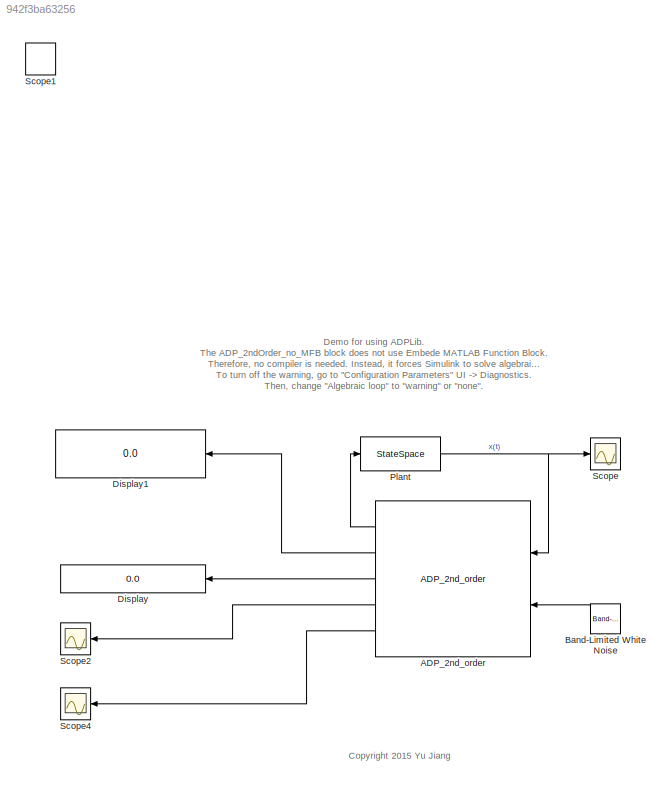
MODEL slx_942f3ba63256
KIND model
BLOCK [Reference] ADP_2nd_order  REF=ADPLib/ADP_2nd_order
  K = [0,0]
  Ports = [2, 5]
  Q = eye(2)
  R = 1
  SourceBlock = ADPLib/ADP_2nd_order
  dT = 0.1
  epsilon = .00001
BLOCK [Reference] Band-Limited White Noise  REF=simulink/Sources/Band-Limited
White Noise
  Cov = [0.1]
  Ports = [0, 1]
  SourceBlock = simulink/Sources/Band-Limited\nWhite Noise
  SourceType = Band-Limited White Noise.
  Ts = 0.01
  VectorParams1D = on
  seed = [23341]
BLOCK [Display] Display
  Decimation = 1
  Lockdown = off
  Ports = [1]
BLOCK [Display] Display1
  Decimation = 1
  Lockdown = off
  Ports = [1]
BLOCK [StateSpace] Plant
  A = [0 1;-0.2 -0.1];
  B = [0.03;.6];
  C = eye(2)
  D = zeros(2,1)
  X0 = [1;2]
BLOCK [Scope] Scope
  Floating = off
  NumInputPorts = 1
  Ports = [1]
  ShowLegends = off
  TimeRange = 10
  YMax = 0.5
  YMin = -0.7
BLOCK [SignalViewerScope] Scope1
  DataFormat = StructureWithTime
  IOType = viewer
  NumInputPorts = 1
  Ports = []
  RefreshTime = 0.035000
  SaveName = ScopeData2
  ShowDataMarkers = off
  ShowLegends = off
BLOCK [Scope] Scope2
  Floating = off
  NumInputPorts = 1
  Ports = [1]
  SaveName = ScopeData2
  ShowLegends = off
BLOCK [Scope] Scope4
  Floating = off
  NumInputPorts = 1
  Ports = [1]
  SaveName = ScopeData3
  ShowLegends = off
ANNOTATION (root): <copyright redacted>
ANNOTATION (root): Demo for using ADPLib. The ADP_2ndOrder_no_MFB block does not use Embede MATLAB Function Block. Therefore, no compiler is needed. Instead, it forces Simulink to solve algebraic loops. To turn off the warning, go to "Configuration Parameters" UI -> Diagnostics. Then, change "Algebraic loop" to "warning" or "none". For more details, see http://files.nyu.edu/yj348/public/adplib
LINE ADP_2nd_order:1 -> Plant:1
LINE ADP_2nd_order:2 -> Display1:1
LINE ADP_2nd_order:3 -> Display:1
LINE ADP_2nd_order:4 -> Scope2:1
LINE ADP_2nd_order:5 -> Scope4:1
LINE Band-Limited White Noise:1 -> ADP_2nd_order:2
NET Plant:1 -> ADP_2nd_order:1, Scope:1
note: NET lines group one-source signal fan-out (src -> all destinations, sorted); 1:1 wires keep LINE
